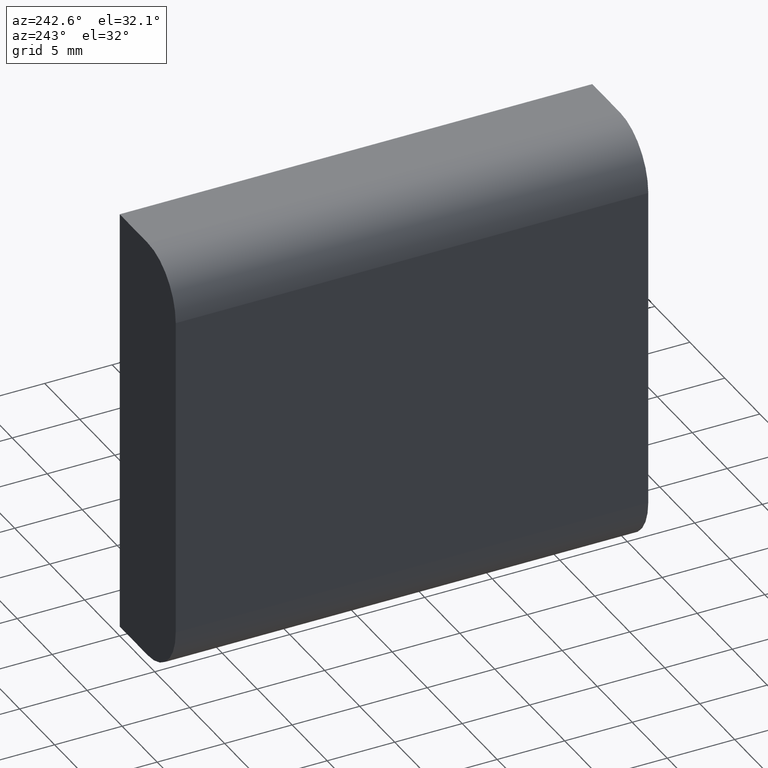
[diagram: clean part render]
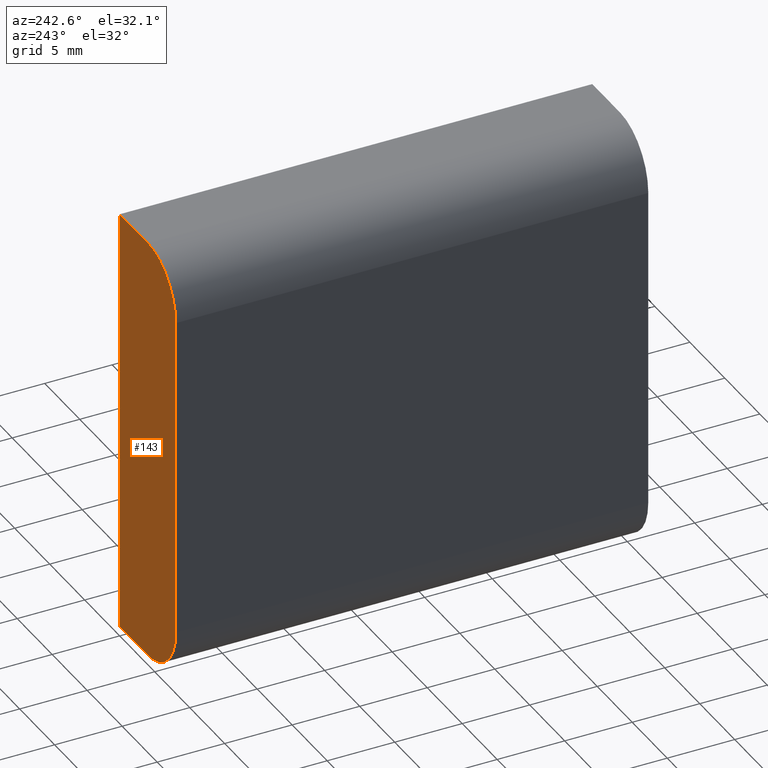
[diagram: same view with one face highlighted and labeled with its STEP entity id]
A machine part, auxiliary view. The second image highlights one B-rep face of the part: STEP entity #143.
In plain terms, the highlighted planar face has unit normal (0, 1, 0).
Its self-contained STEP definition (entity closure, byte-faithful):
#16=CIRCLE('',#171,4.);
#18=CIRCLE('',#175,4.);
#27=FACE_OUTER_BOUND('',#35,.T.);
#35=EDGE_LOOP('',(#119,#120,#121,#122,#123,#124));
#39=LINE('',#228,#53);
#43=LINE('',#240,#57);
#47=LINE('',#252,#61);
#50=LINE('',#256,#64);
#53=VECTOR('',#186,10.);
#57=VECTOR('',#198,10.);
#61=VECTOR('',#210,10.);
#64=VECTOR('',#215,10.);
#67=VERTEX_POINT('',#225);
#68=VERTEX_POINT('',#227);
#70=VERTEX_POINT('',#233);
#72=VERTEX_POINT('',#239);
#74=VERTEX_POINT('',#245);
#76=VERTEX_POINT('',#251);
#79=EDGE_CURVE('',#68,#67,#39,.T.);
#82=EDGE_CURVE('',#70,#68,#16,.T.);
#85=EDGE_CURVE('',#72,#70,#43,.T.);
#88=EDGE_CURVE('',#74,#72,#18,.T.);
#91=EDGE_CURVE('',#76,#74,#47,.T.);
#94=EDGE_CURVE('',#67,#76,#50,.T.);
#119=ORIENTED_EDGE('',*,*,#94,.T.);
#120=ORIENTED_EDGE('',*,*,#91,.T.);
#121=ORIENTED_EDGE('',*,*,#88,.T.);
#122=ORIENTED_EDGE('',*,*,#85,.T.);
#123=ORIENTED_EDGE('',*,*,#82,.T.);
#124=ORIENTED_EDGE('',*,*,#79,.T.);
#135=PLANE('',#178);
#143=ADVANCED_FACE('',(#27),#135,.T.);
#171=AXIS2_PLACEMENT_3D('',#234,#192,#193);
#175=AXIS2_PLACEMENT_3D('',#246,#204,#205);
#178=AXIS2_PLACEMENT_3D('',#257,#216,#217);
#186=DIRECTION('',(1.,0.,0.));
#192=DIRECTION('center_axis',(0.,1.,0.));
#193=DIRECTION('ref_axis',(-1.,0.,0.));
#198=DIRECTION('',(0.,0.,1.));
#204=DIRECTION('center_axis',(0.,1.,0.));
#205=DIRECTION('ref_axis',(0.,0.,-1.));
#210=DIRECTION('',(-1.,0.,0.));
#215=DIRECTION('',(0.,0.,-1.));
#216=DIRECTION('center_axis',(0.,1.,0.));
#217=DIRECTION('ref_axis',(0.,0.,1.));
#225=CARTESIAN_POINT('',(0.,35.,16.));
#227=CARTESIAN_POINT('',(-4.,35.,16.));
#228=CARTESIAN_POINT('',(-4.,35.,16.));
#233=CARTESIAN_POINT('',(-8.,35.,12.));
#234=CARTESIAN_POINT('Origin',(-4.,35.,12.));
#239=CARTESIAN_POINT('',(-8.,35.,-12.));
#240=CARTESIAN_POINT('',(-8.,35.,-12.));
#245=CARTESIAN_POINT('',(-4.,35.,-16.));
#246=CARTESIAN_POINT('Origin',(-4.,35.,-12.));
#251=CARTESIAN_POINT('',(0.,35.,-16.));
#252=CARTESIAN_POINT('',(0.,35.,-16.));
#256=CARTESIAN_POINT('',(0.,35.,16.));
#257=CARTESIAN_POINT('Origin',(-4.,35.,0.));